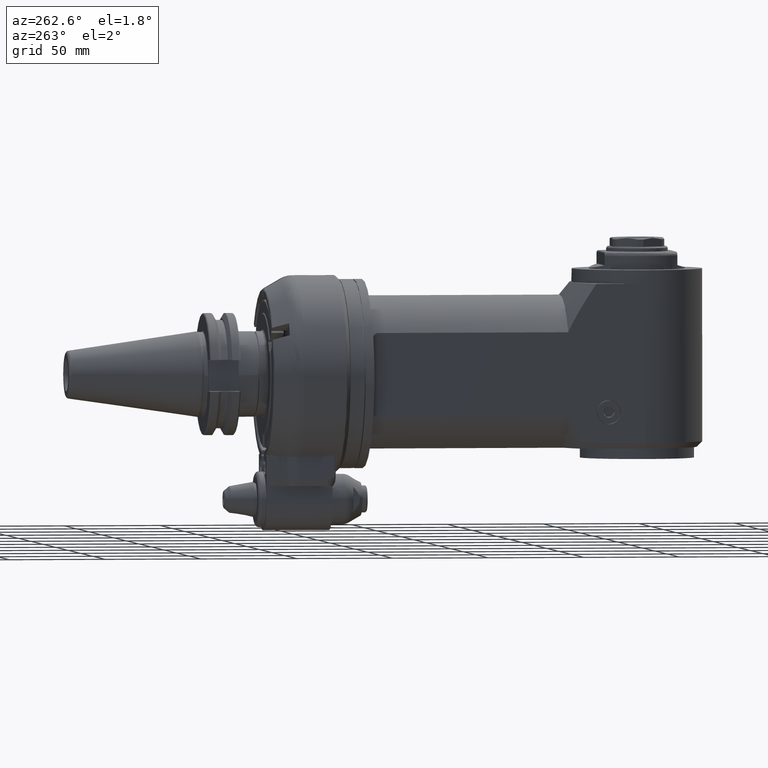
[diagram: clean part render]
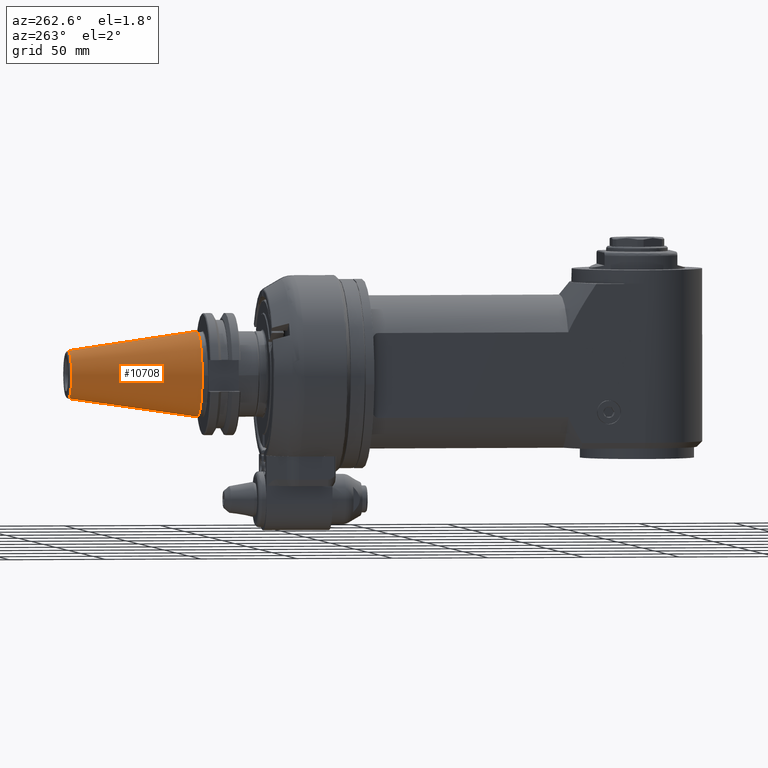
[diagram: same view with one face highlighted and labeled with its STEP entity id]
A machine part, auxiliary view. The second image highlights one B-rep face of the part: STEP entity #10708.
In plain terms, the highlighted conical surface has half-angle 8.297 deg.
Its self-contained STEP definition (entity closure, byte-faithful):
#1242=FACE_OUTER_BOUND('',#1930,.T.);
#1930=EDGE_LOOP('',(#7949,#7950,#7951,#7952,#7953));
#2703=CIRCLE('',#11960,22.225);
#2704=CIRCLE('',#11962,12.45906381812);
#2705=CIRCLE('',#11963,12.45906381812);
#3365=LINE('',#17774,#4068);
#4068=VECTOR('',#13774,17.34203190906);
#4863=VERTEX_POINT('',#17769);
#4864=VERTEX_POINT('',#17773);
#4865=VERTEX_POINT('',#17775);
#6020=EDGE_CURVE('',#4863,#4863,#2703,.T.);
#6022=EDGE_CURVE('',#4863,#4864,#3365,.T.);
#6023=EDGE_CURVE('',#4865,#4864,#2704,.T.);
#6024=EDGE_CURVE('',#4864,#4865,#2705,.T.);
#7949=ORIENTED_EDGE('',*,*,#6020,.F.);
#7950=ORIENTED_EDGE('',*,*,#6022,.T.);
#7951=ORIENTED_EDGE('',*,*,#6023,.F.);
#7952=ORIENTED_EDGE('',*,*,#6024,.F.);
#7953=ORIENTED_EDGE('',*,*,#6022,.F.);
#10456=CONICAL_SURFACE('',#11961,17.34203190906,0.144812411498922);
#10708=ADVANCED_FACE('',(#1242),#10456,.T.);
#11960=AXIS2_PLACEMENT_3D('',#17770,#13769,#13770);
#11961=AXIS2_PLACEMENT_3D('',#17772,#13772,#13773);
#11962=AXIS2_PLACEMENT_3D('',#17776,#13775,#13776);
#11963=AXIS2_PLACEMENT_3D('',#17777,#13777,#13778);
#13769=DIRECTION('center_axis',(-1.,0.,0.));
#13770=DIRECTION('ref_axis',(0.,1.,0.));
#13772=DIRECTION('center_axis',(-1.,0.,0.));
#13773=DIRECTION('ref_axis',(0.,-1.,0.));
#13774=DIRECTION('',(0.98953299358046,-0.144306807239621,1.76724869581176E-17));
#13775=DIRECTION('center_axis',(1.,0.,0.));
#13776=DIRECTION('ref_axis',(0.,1.,0.));
#13777=DIRECTION('center_axis',(1.,0.,0.));
#13778=DIRECTION('ref_axis',(0.,1.,0.));
#17769=CARTESIAN_POINT('',(42.0000000000009,22.2249999999967,2.72177751110459E-15));
#17770=CARTESIAN_POINT('Origin',(42.,0.,0.));
#17772=CARTESIAN_POINT('Origin',(75.48323010543,0.,0.));
#17773=CARTESIAN_POINT('',(108.9664602109,12.45906381812,0.));
#17774=CARTESIAN_POINT('',(75.48323010543,17.34203190906,-2.12378638681416E-15));
#17775=CARTESIAN_POINT('',(108.9664602109,-12.45906381812,1.52579526252333E-15));
#17776=CARTESIAN_POINT('Origin',(108.9664602109,0.,0.));
#17777=CARTESIAN_POINT('Origin',(108.9664602109,0.,0.));